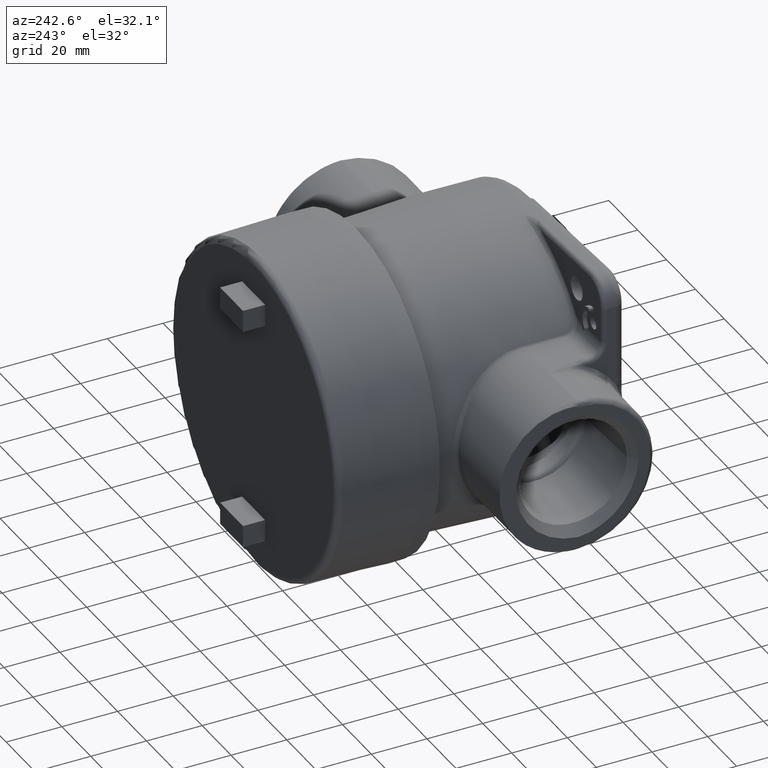
[diagram: clean part render]
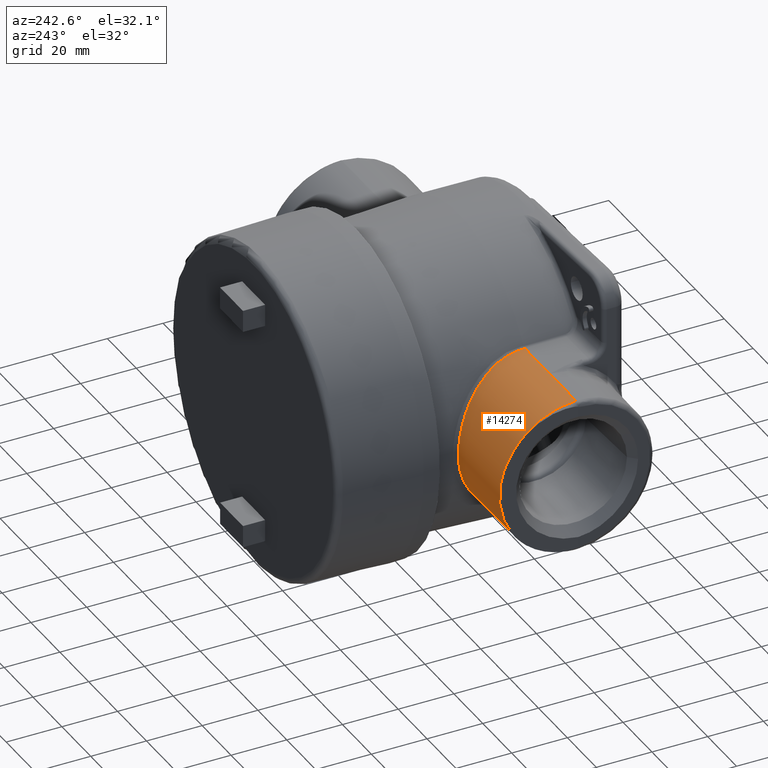
[diagram: same view with one face highlighted and labeled with its STEP entity id]
A machine part, auxiliary view. The second image highlights one B-rep face of the part: STEP entity #14274.
In plain terms, the highlighted cylindrical surface (partial cylindrical patch) has radius 27.7876 mm, axis along (1, 0, 0).
Its self-contained STEP definition (entity closure, byte-faithful):
#59=ELLIPSE('',#15004,1.09466684146291,1.094);
#531=LINE('',#48386,#1790);
#532=LINE('',#48389,#1791);
#533=LINE('',#48407,#1792);
#1790=VECTOR('',#17232,0.393700787401575);
#1791=VECTOR('',#17235,0.393700787401575);
#1792=VECTOR('',#17236,0.393700787401575);
#2765=CYLINDRICAL_SURFACE('',#15391,1.094);
#3543=FACE_OUTER_BOUND('',#4404,.T.);
#4404=EDGE_LOOP('',(#10956,#10957,#10958,#10959,#10960,#10961,#10962));
#5208=B_SPLINE_CURVE_WITH_KNOTS('',3,(#48087,#48088,#48089,#48090,#48091,
#48092,#48093,#48094,#48095,#48096,#48097,#48098,#48099,#48100,#48101,#48102,
#48103,#48104,#48105,#48106),.UNSPECIFIED.,.F.,.F.,(4,1,1,1,1,1,1,1,1,1,
1,1,1,1,1,1,1,4),(0.123633235026184,0.782928695405085,1.44222415578399,
1.77187188597344,2.18393154871025,2.76081507654179,4.07940599729959,4.51893630421886,
4.95846661113813,5.15076112041531,5.39799691805739,6.55176397372047,6.7165878388152,
8.035178759573,8.28241455721509,8.6944742199519,8.85929808504663,9.35376516678828),
 .UNSPECIFIED.);
#5217=B_SPLINE_CURVE_WITH_KNOTS('',3,(#48390,#48391,#48392,#48393,#48394,
#48395,#48396,#48397,#48398),.UNSPECIFIED.,.F.,.F.,(4,1,1,1,1,1,4),(-10.7910063990523,
-10.4182814509633,-10.0455565028742,-9.67283155478516,-9.30010660669612,
-8.92738165860707,-8.18193176242897),.UNSPECIFIED.);
#5218=B_SPLINE_CURVE_WITH_KNOTS('',3,(#48400,#48401,#48402,#48403,#48404,
#48405,#48406),.UNSPECIFIED.,.F.,.F.,(4,1,1,1,4),(-16.3680996373845,-15.620939540022,
-14.8737794426595,-14.5001993939783,-13.7530392966158),.UNSPECIFIED.);
#6095=VERTEX_POINT('',#24697);
#6096=VERTEX_POINT('',#24718);
#6287=VERTEX_POINT('',#25473);
#6423=VERTEX_POINT('',#48078);
#6424=VERTEX_POINT('',#48086);
#6432=VERTEX_POINT('',#48388);
#6433=VERTEX_POINT('',#48399);
#7549=EDGE_CURVE('',#6096,#6095,#59,.T.);
#8097=EDGE_CURVE('',#6423,#6424,#5208,.T.);
#8112=EDGE_CURVE('',#6287,#6424,#531,.T.);
#8113=EDGE_CURVE('',#6423,#6432,#532,.T.);
#8114=EDGE_CURVE('',#6096,#6432,#5217,.T.);
#8115=EDGE_CURVE('',#6433,#6095,#5218,.T.);
#8116=EDGE_CURVE('',#6433,#6287,#533,.T.);
#10956=ORIENTED_EDGE('',*,*,#8097,.F.);
#10957=ORIENTED_EDGE('',*,*,#8113,.T.);
#10958=ORIENTED_EDGE('',*,*,#8114,.F.);
#10959=ORIENTED_EDGE('',*,*,#7549,.T.);
#10960=ORIENTED_EDGE('',*,*,#8115,.F.);
#10961=ORIENTED_EDGE('',*,*,#8116,.T.);
#10962=ORIENTED_EDGE('',*,*,#8112,.T.);
#14274=ADVANCED_FACE('',(#3543),#2765,.T.);
#15004=AXIS2_PLACEMENT_3D('',#24719,#16199,#16200);
#15391=AXIS2_PLACEMENT_3D('',#48387,#17233,#17234);
#16199=DIRECTION('center_axis',(0.999390827019096,-0.034899496702501,1.22390077740616E-16));
#16200=DIRECTION('ref_axis',(-0.034899496702501,-0.999390827019096,-4.27395569285714E-18));
#17232=DIRECTION('',(1.,0.,1.22464679914735E-16));
#17233=DIRECTION('center_axis',(1.,0.,1.22464679914735E-16));
#17234=DIRECTION('ref_axis',(7.94398672356442E-24,0.999999999999998,-6.48675743005684E-8));
#17235=DIRECTION('',(-1.,0.,-1.22464679914735E-16));
#17236=DIRECTION('',(1.,0.,1.22464679914735E-16));
#24697=CARTESIAN_POINT('',(-3.21781149019457,-1.48384168041223,0.589234758199753));
#24718=CARTESIAN_POINT('',(-3.21781149019457,-1.48384168041234,-0.589234758199928));
#24719=CARTESIAN_POINT('Origin',(-3.25,-2.4056,-3.9801020972289E-16));
#25473=CARTESIAN_POINT('',(-2.474,-2.4056,1.094));
#48078=CARTESIAN_POINT('',(-1.801491932423,-2.40560014166566,-1.09399999999996));
#48086=CARTESIAN_POINT('',(-1.80145581694765,-2.4056,1.094));
#48087=CARTESIAN_POINT('Ctrl Pts',(-1.80149192630632,-2.40560014193025,
-1.09399999999999));
#48088=CARTESIAN_POINT('Ctrl Pts',(-1.79790986568164,-2.32279254886131,
-1.09400001074305));
#48089=CARTESIAN_POINT('Ctrl Pts',(-1.80349163169253,-2.15684951066976,
-1.07516210274247));
#48090=CARTESIAN_POINT('Ctrl Pts',(-1.83935905505916,-1.96043486243139,
-1.00515470509295));
#48091=CARTESIAN_POINT('Ctrl Pts',(-1.88033581890474,-1.8108426952077,-0.921610238908573));
#48092=CARTESIAN_POINT('Ctrl Pts',(-1.92421307333479,-1.67962988756755,
-0.825133439146938));
#48093=CARTESIAN_POINT('Ctrl Pts',(-2.00439262059846,-1.4833141691812,-0.623415599460375));
#48094=CARTESIAN_POINT('Ctrl Pts',(-2.07246983539602,-1.35252463423985,
-0.358633453100165));
#48095=CARTESIAN_POINT('Ctrl Pts',(-2.09453301633382,-1.31060775071027,
-0.0830676692101898));
#48096=CARTESIAN_POINT('Ctrl Pts',(-2.0947134255171,-1.31049131815912,0.0518209134428444));
#48097=CARTESIAN_POINT('Ctrl Pts',(-2.08815688414701,-1.32267421040225,
0.162365060647624));
#48098=CARTESIAN_POINT('Ctrl Pts',(-2.06881318410331,-1.35953105872036,
0.359924713577498));
#48099=CARTESIAN_POINT('Ctrl Pts',(-2.02612273462718,-1.44174127589253,
0.539321070515442));
#48100=CARTESIAN_POINT('Ctrl Pts',(-1.94008690884447,-1.63599606599902,
0.796484908866853));
#48101=CARTESIAN_POINT('Ctrl Pts',(-1.87596774153732,-1.80462380313315,
0.931788136860467));
#48102=CARTESIAN_POINT('Ctrl Pts',(-1.82680715052719,-2.02893226827625,
1.02960453222069));
#48103=CARTESIAN_POINT('Ctrl Pts',(-1.81159508561526,-2.12847846771693,
1.06033921281226));
#48104=CARTESIAN_POINT('Ctrl Pts',(-1.79996661068853,-2.26067922372075,
1.08691952457708));
#48105=CARTESIAN_POINT('Ctrl Pts',(-1.79880539673693,-2.34349331321717,
1.09399991111162));
#48106=CARTESIAN_POINT('Ctrl Pts',(-1.80149185273825,-2.40559844121418,
1.09399999999888));
#48386=CARTESIAN_POINT('',(-3.25,-2.4056,1.094));
#48387=CARTESIAN_POINT('Origin',(-3.25,-2.4056,-3.9801020972289E-16));
#48388=CARTESIAN_POINT('',(-3.18746190348132,-2.4056,-1.094));
#48389=CARTESIAN_POINT('',(-3.25,-2.4056,-1.094));
#48390=CARTESIAN_POINT('Ctrl Pts',(-3.21781149019457,-1.48384168041222,
-0.589234758199746));
#48391=CARTESIAN_POINT('Ctrl Pts',(-3.21688344781906,-1.5120275924196,-0.633326859906965));
#48392=CARTESIAN_POINT('Ctrl Pts',(-3.21481061105298,-1.57498247059759,
-0.717703029998211));
#48393=CARTESIAN_POINT('Ctrl Pts',(-3.21118067598893,-1.68522854664661,
-0.828249512292676));
#48394=CARTESIAN_POINT('Ctrl Pts',(-3.20704644717475,-1.81079071131652,
-0.922711658987035));
#48395=CARTESIAN_POINT('Ctrl Pts',(-3.20249099221022,-1.94914608836769,
-0.998280021886477));
#48396=CARTESIAN_POINT('Ctrl Pts',(-3.19608597863727,-2.1436750815868,-1.07109756362168));
#48397=CARTESIAN_POINT('Ctrl Pts',(-3.19088393254335,-2.30166831263967,
-1.094));
#48398=CARTESIAN_POINT('Ctrl Pts',(-3.18746190348132,-2.4056,-1.094));
#48399=CARTESIAN_POINT('',(-3.18746190348132,-2.4056,1.094));
#48400=CARTESIAN_POINT('Ctrl Pts',(-3.18746190348132,-2.4056,1.094));
#48401=CARTESIAN_POINT('Ctrl Pts',(-3.19088388659867,-2.30166970804247,
1.094));
#48402=CARTESIAN_POINT('Ctrl Pts',(-3.19775204355863,-2.0930744188249,1.0639126348226));
#48403=CARTESIAN_POINT('Ctrl Pts',(-3.20561973680018,-1.85412185021567,
0.955032869885246));
#48404=CARTESIAN_POINT('Ctrl Pts',(-3.21256592805813,-1.64315655299561,
0.796768444316701));
#48405=CARTESIAN_POINT('Ctrl Pts',(-3.21595014733636,-1.54037320030971,
0.677668778866913));
#48406=CARTESIAN_POINT('Ctrl Pts',(-3.21781149019457,-1.48384168041222,
0.58923475819974));
#48407=CARTESIAN_POINT('',(-3.25,-2.4056,1.094));